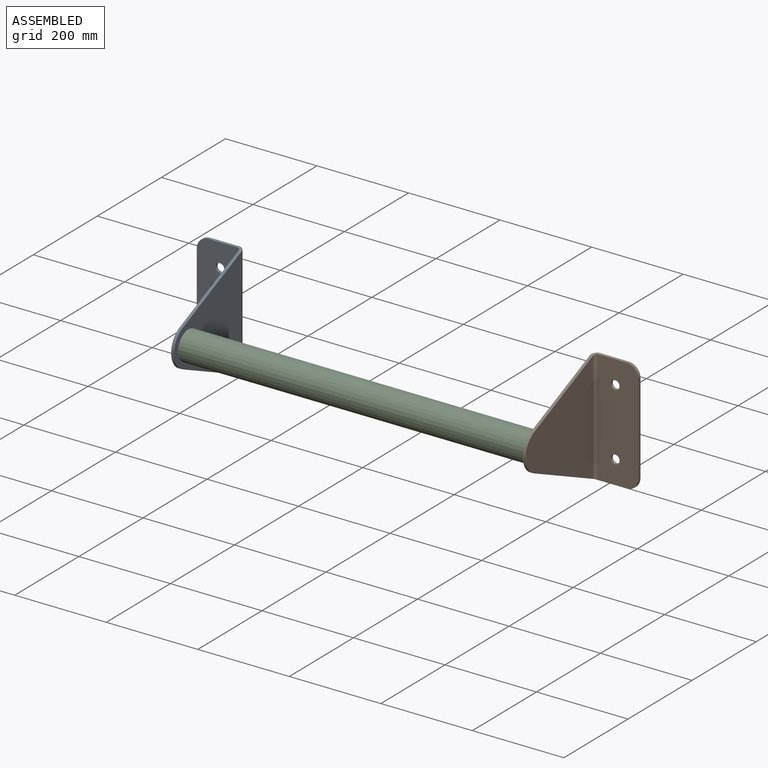
[diagram: assembled view]
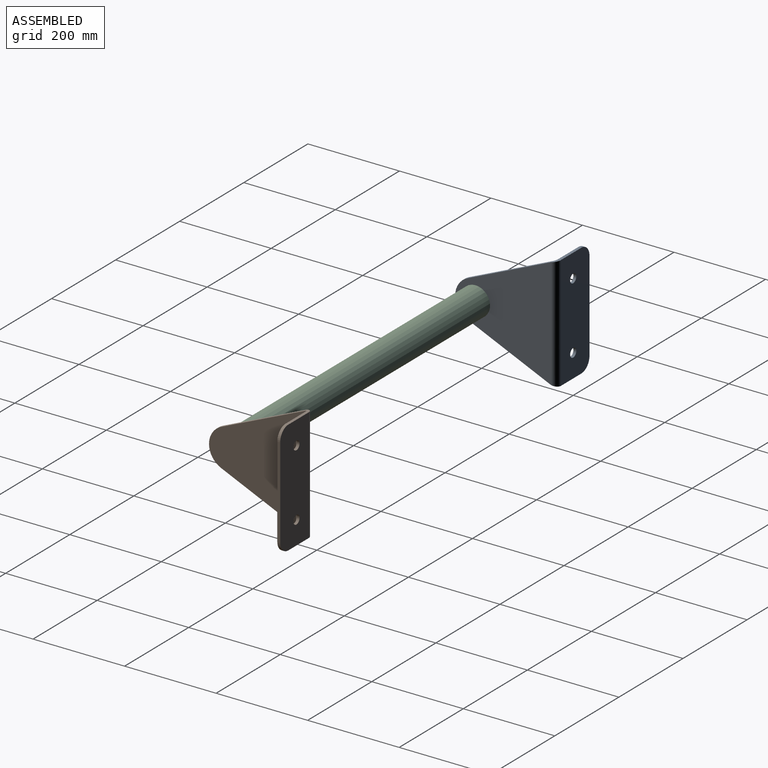
[diagram: assembled view, second angle]
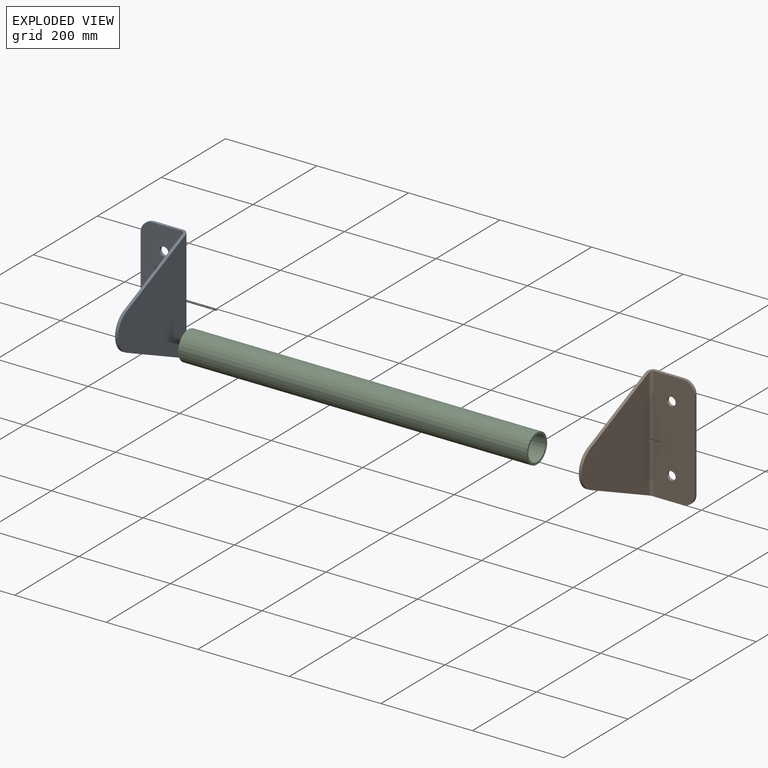
[diagram: exploded view]
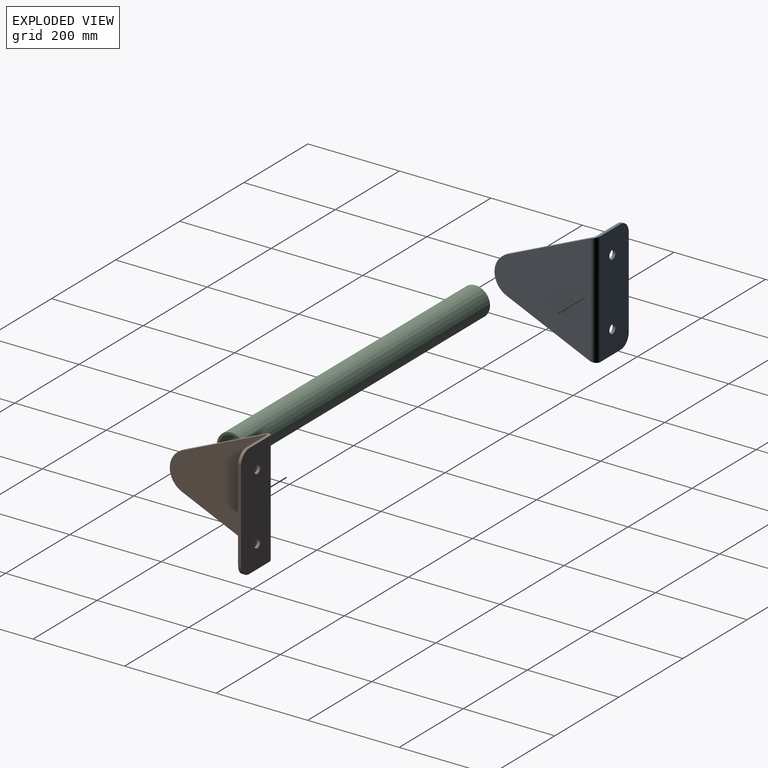
[diagram: exploded view, second angle]
ASSEMBLY  parts=3 mates=2
PART A: 18 faces, bbox 101.6x222.3x248.4 mm
  f0: cylinder r=44.45mm len=81.34mm, axis (-1,0,0), area 652.2mm2, adj f1,f2,f3,f4
  f1: plane 183.04x80.73mm, normal (0,-0.4,-0.91), area 1270.3mm2, adj f0,f3,f4,f14
  f2: plane 183.04x80.73mm, normal (0,-0.4,0.91), area 1270.3mm2, adj f0,f3,f4,f15
  f3: plane 242.8x209.55mm, normal (1,0,0), area 31218mm2, adj f0,f1,f2,f16
  f4: plane 242.8x209.55mm, normal (-1,0,0), area 31218mm2, adj f0,f1,f2,f17
  f5: plane 197.6x6.35mm, normal (-1,0,0), area 1254.8mm2, adj f10,f11,f12,f13
  f6: plane 63.5x6.35mm, normal (0,0,1), area 403.2mm2, adj f10,f11,f12,f15
  f7: cylinder r=9.53mm len=19.05mm, axis (0,1,0), area 380mm2, adj f10,f11
  f8: cylinder r=9.53mm len=19.05mm, axis (0,1,0), area 380mm2, adj f10,f11
  f9: plane 63.5x6.35mm, normal (0,0,-1), area 403.2mm2, adj f10,f11,f13,f14
  f10: plane 248.4x88.9mm, normal (0,1,0), area 21235.7mm2, adj f5,f6,f7,f8,f9,f12,f13,f16
  f11: plane 248.4x88.9mm, normal (0,-1,0), area 21235.7mm2, adj f5,f6,f7,f8,f9,f12,f13,f17
  f12: cylinder r=25.4mm len=25.4mm, axis (0,1,0), area 253.4mm2, adj f5,f6,f10,f11
  f13: cylinder r=25.4mm len=25.4mm, axis (0,1,0), area 253.4mm2, adj f5,f9,f10,f11
  f14: bspline ~12.7x12.7mm, area 97.3mm2, adj f1,f9,f16,f17
  f15: bspline ~12.7x12.7mm, area 96.9mm2, adj f2,f6,f16,f17
  f16: cylinder r=12.7mm len=248.4mm, axis (0,0,-1), area 4914.7mm2, adj f3,f10,f14,f15
  f17: cylinder r=6.35mm len=248.4mm, axis (0,0,-1), area 2457.3mm2, adj f4,f11,f14,f15
PART B: 18 faces, bbox 101.6x222.3x248.4 mm
  f0: cylinder r=44.45mm len=81.34mm, axis (1,0,0), area 652.2mm2, adj f1,f2,f3,f4
  f1: plane 183.04x80.73mm, normal (0,-0.4,0.91), area 1270.3mm2, adj f0,f3,f4,f15
  f2: plane 183.04x80.73mm, normal (0,-0.4,-0.91), area 1270.3mm2, adj f0,f3,f4,f14
  f3: plane 242.8x209.55mm, normal (-1,0,0), area 31218mm2, adj f0,f1,f2,f16
  f4: plane 242.8x209.55mm, normal (1,0,0), area 31218mm2, adj f0,f1,f2,f17
  f5: plane 197.6x6.35mm, normal (1,0,0), area 1254.8mm2, adj f10,f11,f12,f13
  f6: plane 63.5x6.35mm, normal (0,0,-1), area 403.2mm2, adj f10,f11,f13,f14
  f7: cylinder r=9.53mm len=19.05mm, axis (0,1,0), area 380mm2, adj f10,f11
  f8: cylinder r=9.53mm len=19.05mm, axis (0,1,0), area 380mm2, adj f10,f11
  f9: plane 63.5x6.35mm, normal (0,0,1), area 403.2mm2, adj f10,f11,f12,f15
  f10: plane 248.4x88.9mm, normal (0,1,0), area 21235.7mm2, adj f5,f6,f7,f8,f9,f12,f13,f16
  f11: plane 248.4x88.9mm, normal (0,-1,0), area 21235.7mm2, adj f5,f6,f7,f8,f9,f12,f13,f17
  f12: cylinder r=25.4mm len=25.4mm, axis (0,1,0), area 253.4mm2, adj f5,f9,f10,f11
  f13: cylinder r=25.4mm len=25.4mm, axis (0,1,0), area 253.4mm2, adj f5,f6,f10,f11
  f14: bspline ~12.7x12.7mm, area 96.9mm2, adj f2,f6,f16,f17
  f15: bspline ~12.7x12.7mm, area 97.3mm2, adj f1,f9,f16,f17
  f16: cylinder r=12.7mm len=248.4mm, axis (0,0,-1), area 4914.7mm2, adj f3,f10,f14,f15
  f17: cylinder r=6.35mm len=248.4mm, axis (0,0,-1), area 2457.4mm2, adj f4,f11,f14,f15
PART C: 4 faces, bbox 762x63.5x63.5 mm
  f0: cylinder r=26.99mm len=762mm, axis (-1,0,0), area 129210.4mm2, adj f2,f3
  f1: cylinder r=31.75mm len=762mm, axis (-1,0,0), area 152012.2mm2, adj f2,f3
  f2: plane 63.5x63.5mm, normal (1,0,0), area 878.8mm2, adj f0,f1
  f3: plane 63.5x63.5mm, normal (-1,0,0), area 878.8mm2, adj f0,f1
PLACE A at identity
PLACE B at identity
PLACE C at identity
MATE cylindrical B.f0 <-> C.f1  axis (-1,0,0) through (381,0,0)mm
MATE cylindrical A.f0 <-> C.f1  axis (1,0,0) through (-381,0,0)mm
